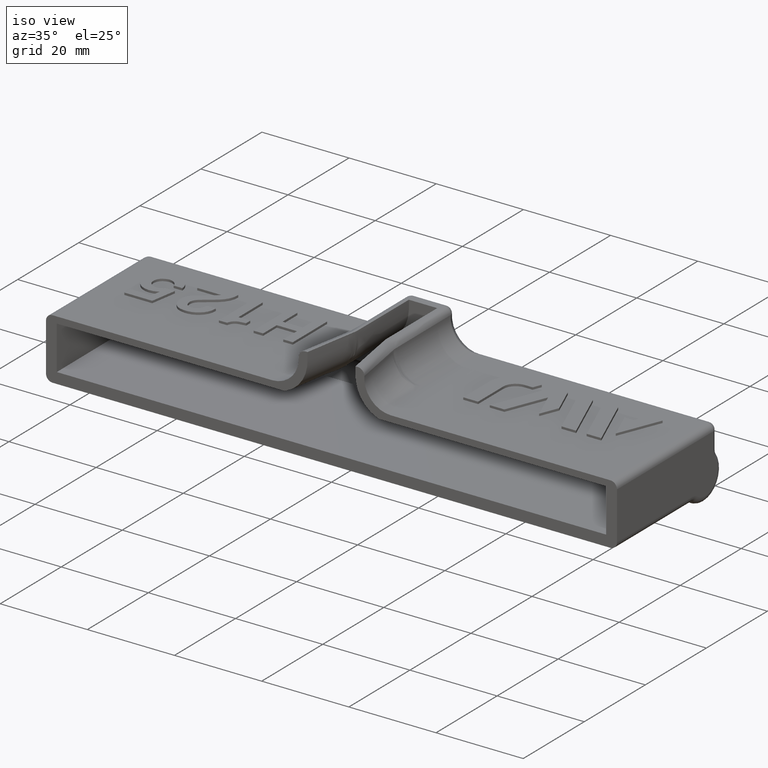
[diagram: clean part render]
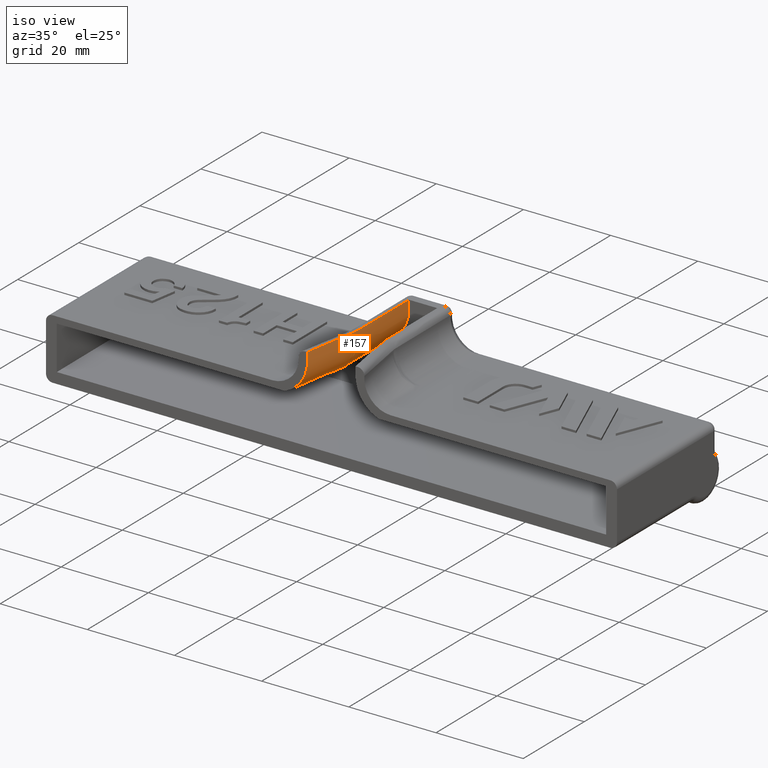
[diagram: same view with one face highlighted and labeled with its STEP entity id]
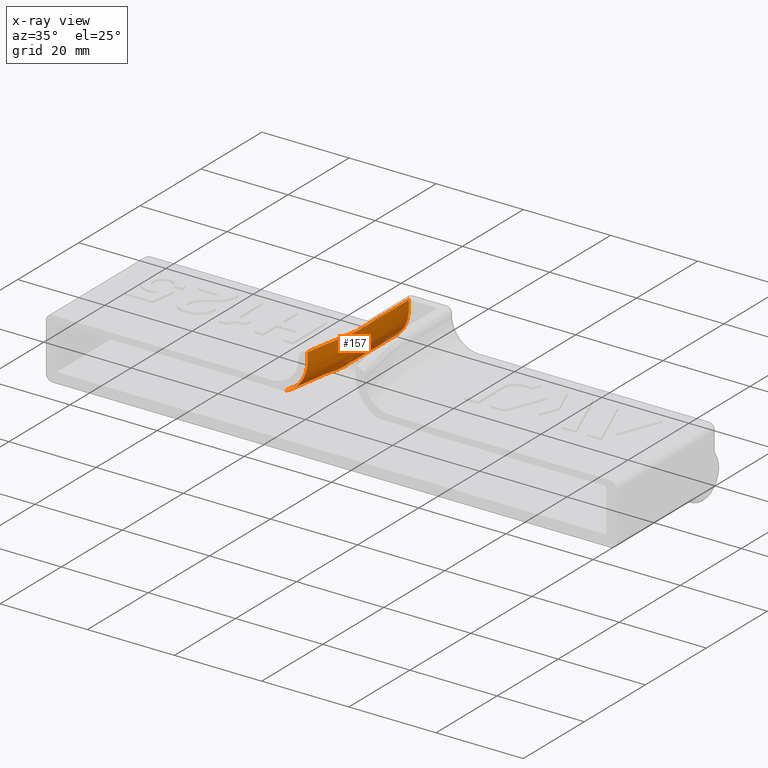
[diagram: x-ray of the same camera — body ghosted, the highlighted face saturated]
A machine part, iso view. The second image highlights one B-rep face of the part: STEP entity #157.
The next image is the same camera in x-ray: the body ghosted, the highlighted face saturated — about 2% of this face is hidden behind the body in this view.
In plain terms, the highlighted face is a OffsetSurface surface.
Its self-contained STEP definition (entity closure, byte-faithful):
#157=ADVANCED_FACE('',(#339),#340,.F.);
#339=FACE_OUTER_BOUND('',#1029,.T.);
#340=OFFSET_SURFACE('',#1030,-2.0,.F.);
#1029=EDGE_LOOP('',(#2074,#2075,#2076,#2077));
#1030=B_SPLINE_SURFACE_WITH_KNOTS('',3,3,((#2078,#2079,#2080,#2081,#2082,#2083,#2084,#2085,#2086,#2087,#2088),(#2089,#2090,#2091,#2092,#2093,#2094,#2095,#2096,#2097,#2098,#2099),(#2100,#2101,#2102,#2103,#2104,#2105,#2106,#2107,#2108,#2109,#2110),(#2111,#2112,#2113,#2114,#2115,#2116,#2117,#2118,#2119,#2120,#2121),(#2122,#2123,#2124,#2125,#2126,#2127,#2128,#2129,#2130,#2131,#2132),(#2133,#2134,#2135,#2136,#2137,#2138,#2139,#2140,#2141,#2142,#2143),(#2144,#2145,#2146,#2147,#2148,#2149,#2150,#2151,#2152,#2153,#2154),(#2155,#2156,#2157,#2158,#2159,#2160,#2161,#2162,#2163,#2164,#2165),(#2166,#2167,#2168,#2169,#2170,#2171,#2172,#2173,#2174,#2175,#2176)),.UNSPECIFIED.,.F.,.F.,.F.,(4,2,1,1,1,4),(4,2,1,1,1,2,4),(0.0,0.2,0.4,0.6,0.8,1.0),(0.156861815288921,1.0,2.0,3.0,4.0,5.0,5.77702223691957),.UNSPECIFIED.);
#2074=ORIENTED_EDGE('',*,*,#3035,.F.);
#2075=ORIENTED_EDGE('',*,*,#3036,.T.);
#2076=ORIENTED_EDGE('',*,*,#3037,.T.);
#2077=ORIENTED_EDGE('',*,*,#3038,.F.);
#2078=CARTESIAN_POINT('',(-5.25,30.0000000000004,14.5));
#2079=CARTESIAN_POINT('',(-5.25,24.6249622117534,14.5));
#2080=CARTESIAN_POINT('',(-5.25,19.2499244235064,14.5));
#2081=CARTESIAN_POINT('',(-5.25,13.729442533856,14.5));
#2082=CARTESIAN_POINT('',(-5.25634720316461,13.4385543310493,14.5));
#2083=CARTESIAN_POINT('',(-5.2848914940124,13.0030526101797,14.5));
#2084=CARTESIAN_POINT('',(-5.33240493528107,12.5692104749287,14.5));
#2085=CARTESIAN_POINT('',(-5.37666636671683,12.281639337282,14.5));
#2086=CARTESIAN_POINT('',(-6.18116418474049,7.71910548800226,14.5));
#2087=CARTESIAN_POINT('',(-6.96040589960307,3.29980611741442,14.5));
#2088=CARTESIAN_POINT('',(-7.73964761446565,-1.11949325317344,14.5));
#2089=CARTESIAN_POINT('',(-5.25,30.0000000000004,13.8333333333333));
#2090=CARTESIAN_POINT('',(-5.25,24.6249622117534,13.8333333333333));
#2091=CARTESIAN_POINT('',(-5.25,19.2499244235064,13.8333333333333));
#2092=CARTESIAN_POINT('',(-5.25,13.729442533856,13.8333333333333));
#2093=CARTESIAN_POINT('',(-5.25634720316463,13.4385543310493,13.8333333333333));
#2094=CARTESIAN_POINT('',(-5.28489149401241,13.0030526101797,13.8333333333333));
#2095=CARTESIAN_POINT('',(-5.33240493528109,12.5692104749287,13.8333333333333));
#2096=CARTESIAN_POINT('',(-5.37666636671684,12.281639337282,13.8333333333333));
#2097=CARTESIAN_POINT('',(-6.18116418474051,7.71910548800227,13.8333333333333));
#2098=CARTESIAN_POINT('',(-6.96040589960308,3.29980611741442,13.8333333333333));
#2099=CARTESIAN_POINT('',(-7.73964761446566,-1.11949325317344,13.8333333333333));
#2100=CARTESIAN_POINT('',(-5.25,30.0000000000004,13.1666666666666));
#2101=CARTESIAN_POINT('',(-5.25,24.6249622117534,13.1666666666666));
#2102=CARTESIAN_POINT('',(-5.25,19.2499244235064,13.1666666666666));
#2103=CARTESIAN_POINT('',(-5.25,13.729442533856,13.1666666666666));
#2104=CARTESIAN_POINT('',(-5.25634720316463,13.4385543310493,13.1666666666666));
#2105=CARTESIAN_POINT('',(-5.28489149401242,13.0030526101797,13.1666666666666));
#2106=CARTESIAN_POINT('',(-5.3324049352811,12.5692104749287,13.1666666666666));
#2107=CARTESIAN_POINT('',(-5.37666636671685,12.281639337282,13.1666666666666));
#2108=CARTESIAN_POINT('',(-6.18116418474052,7.71910548800227,13.1666666666666));
#2109=CARTESIAN_POINT('',(-6.96040589960309,3.29980611741442,13.1666666666666));
#2110=CARTESIAN_POINT('',(-7.73964761446567,-1.11949325317344,13.1666666666666));
#2111=CARTESIAN_POINT('',(-5.25,30.0000000000004,11.7147075251699));
#2112=CARTESIAN_POINT('',(-5.25,24.6249622117534,11.7147075251699));
#2113=CARTESIAN_POINT('',(-5.25,19.2499244235064,11.7147075251699));
#2114=CARTESIAN_POINT('',(-5.25,13.729442533856,11.7147075251699));
#2115=CARTESIAN_POINT('',(-5.25634720316466,13.4385543310493,11.7147075251699));
#2116=CARTESIAN_POINT('',(-5.28489149401245,13.0030526101797,11.7147075251699));
#2117=CARTESIAN_POINT('',(-5.33240493528113,12.5692104749287,11.7147075251699));
#2118=CARTESIAN_POINT('',(-5.37666636671688,12.2816393372821,11.7147075251699));
#2119=CARTESIAN_POINT('',(-6.18116418474055,7.71910548800228,11.7147075251699));
#2120=CARTESIAN_POINT('',(-6.96040589960312,3.29980611741443,11.7147075251699));
#2121=CARTESIAN_POINT('',(-7.7396476144657,-1.11949325317343,11.7147075251699));
#2122=CARTESIAN_POINT('',(-5.5624087705078,30.0000000000004,10.14412257551));
#2123=CARTESIAN_POINT('',(-5.5624087705078,24.6249622117534,10.14412257551));
#2124=CARTESIAN_POINT('',(-5.5624087705078,19.2499244235064,10.14412257551));
#2125=CARTESIAN_POINT('',(-5.5624087705078,13.7339870562709,10.14412257551));
#2126=CARTESIAN_POINT('',(-5.56855767700651,13.4521854254735,10.14412257551));
#2127=CARTESIAN_POINT('',(-5.5962102392984,13.0302894711354,10.1441225755099));
#2128=CARTESIAN_POINT('',(-5.64223924519856,12.6100012472889,10.14412257551));
#2129=CARTESIAN_POINT('',(-5.68511809405763,12.33141307006,10.14412257551));
#2130=CARTESIAN_POINT('',(-6.48882676404559,7.77335470168811,10.14412257551));
#2131=CARTESIAN_POINT('',(-7.26806847890816,3.35405533110026,10.14412257551));
#2132=CARTESIAN_POINT('',(-8.04731019377074,-1.0652440394876,10.14412257551));
#2133=CARTESIAN_POINT('',(-6.8969061328167,30.0000000000004,8.14690613281661));
#2134=CARTESIAN_POINT('',(-6.8969061328167,24.6249622117534,8.14690613281661));
#2135=CARTESIAN_POINT('',(-6.8969061328167,19.2499244235064,8.14690613281661));
#2136=CARTESIAN_POINT('',(-6.89690613281671,13.7533996136257,8.14690613281661));
#2137=CARTESIAN_POINT('',(-6.9022079876236,13.5104125345426,8.14690613281661));
#2138=CARTESIAN_POINT('',(-6.92605140779758,13.1466354976691,8.1469061328166));
#2139=CARTESIAN_POINT('',(-6.96573944228206,12.7842446849259,8.1469061328166));
#2140=CARTESIAN_POINT('',(-7.00271239804229,12.5440284681375,8.1469061328166));
#2141=CARTESIAN_POINT('',(-7.80305011282174,8.00508773675437,8.1469061328166));
#2142=CARTESIAN_POINT('',(-8.58229182768431,3.58578836616652,8.1469061328166));
#2143=CARTESIAN_POINT('',(-9.36153354254689,-0.83351100442133,8.1469061328166));
#2144=CARTESIAN_POINT('',(-8.8941225755101,30.0000000000004,6.81240877050773));
#2145=CARTESIAN_POINT('',(-8.8941225755101,24.6249622117534,6.81240877050773));
#2146=CARTESIAN_POINT('',(-8.8941225755101,19.2499244235064,6.81240877050773));
#2147=CARTESIAN_POINT('',(-8.8941225755101,13.7824525588309,6.81240877050773));
#2148=CARTESIAN_POINT('',(-8.89815672787375,13.5975555615186,6.81240877050773));
#2149=CARTESIAN_POINT('',(-8.91629936400325,13.3207596314427,6.81240877050771));
#2150=CARTESIAN_POINT('',(-8.94649746412612,13.0450184178,6.81240877050771));
#2151=CARTESIAN_POINT('',(-8.97463162624095,12.8622298981317,6.81240877050772));
#2152=CARTESIAN_POINT('',(-9.76992435002966,8.35190073243451,6.81240877050771));
#2153=CARTESIAN_POINT('',(-10.5491660648922,3.93260136184666,6.81240877050772));
#2154=CARTESIAN_POINT('',(-11.3284077797548,-0.48669800874119,6.81240877050772));
#2155=CARTESIAN_POINT('',(-10.46470752517,30.0000000000004,6.5));
#2156=CARTESIAN_POINT('',(-10.46470752517,24.6249622117534,6.5));
#2157=CARTESIAN_POINT('',(-10.46470752517,19.2499244235064,6.5));
#2158=CARTESIAN_POINT('',(-10.46470752517,13.8052994158401,6.5));
#2159=CARTESIAN_POINT('',(-10.4677447728741,13.6660837008383,6.5));
#2160=CARTESIAN_POINT('',(-10.4814043868182,13.4576885781665,6.5));
#2161=CARTESIAN_POINT('',(-10.5041397263895,13.2500874786006,6.5));
#2162=CARTESIAN_POINT('',(-10.5253231765154,13.1124593505967,6.5));
#2163=CARTESIAN_POINT('',(-11.3166485852191,8.62462994681407,6.5));
#2164=CARTESIAN_POINT('',(-12.0958903000816,4.20533057622622,6.5));
#2165=CARTESIAN_POINT('',(-12.8751320149442,-0.213968794361634,6.5));
#2166=CARTESIAN_POINT('',(-11.25,30.0000000000004,6.5));
#2167=CARTESIAN_POINT('',(-11.25,24.6249622117534,6.5));
#2168=CARTESIAN_POINT('',(-11.25,19.2499244235064,6.5));
#2169=CARTESIAN_POINT('',(-11.25,13.8167228443446,6.5));
#2170=CARTESIAN_POINT('',(-11.2525387953742,13.7003477704981,6.5));
#2171=CARTESIAN_POINT('',(-11.2639568982257,13.5261530515284,6.5));
#2172=CARTESIAN_POINT('',(-11.2829608575211,13.3526220090009,6.5));
#2173=CARTESIAN_POINT('',(-11.3006689516526,13.2375740768292,6.5));
#2174=CARTESIAN_POINT('',(-12.0900107028138,8.76099455400385,6.5));
#2175=CARTESIAN_POINT('',(-12.8692524176763,4.341695183416,6.5));
#2176=CARTESIAN_POINT('',(-13.6484941325389,-0.0776041871718498,6.5));
#3035=EDGE_CURVE('',#3474,#3475,#3476,.T.);
#3036=EDGE_CURVE('',#3474,#3477,#3478,.T.);
#3037=EDGE_CURVE('',#3477,#3446,#3479,.T.);
#3038=EDGE_CURVE('',#3475,#3446,#3480,.F.);
#3446=VERTEX_POINT('',#4462);
#3474=VERTEX_POINT('',#4559);
#3475=VERTEX_POINT('',#4560);
#3476=B_SPLINE_CURVE_WITH_KNOTS('',3,(#4561,#4562,#4563,#4564,#4565,#4566,#4567,#4568,#4569,#4570,#4571,#4572,#4573,#4574,#4575,#4576,#4577,#4578,#4579),.UNSPECIFIED.,.F.,.F.,(4,2,2,2,2,2,2,2,1,4),(0.00293818128565952,0.0043865750629155,0.00511077195154349,0.00583496884017148,0.00873175639468344,0.0116285439491954,0.0123527408378234,0.0127148392821374,0.0130769377264514,0.0145253315037074),.UNSPECIFIED.);
#3477=VERTEX_POINT('',#4580);
#3478=B_SPLINE_CURVE_WITH_KNOTS('',3,(#4581,#4582,#4583,#4584,#4585,#4586,#4587,#4588,#4589,#4590,#4591,#4592,#4593,#4594,#4595,#4596,#4597,#4598,#4599,#4600,#4601,#4602,#4603,#4604,#4605,#4606,#4607,#4608,#4609,#4610,#4611,#4612,#4613,#4614,#4615),.UNSPECIFIED.,.F.,.F.,(4,2,2,1,2,2,2,2,2,2,2,2,2,2,2,2,2,4),(0.0,0.0076031971731548,0.0114047957597322,0.0123551954063765,0.0128303952296987,0.0133055950530209,0.0137807948763431,0.0142559946996652,0.0152063943463096,0.019007992932887,0.0228095915194644,0.0266111901060418,0.0285119893993305,0.0294623890459748,0.029937588869297,0.0301751887809581,0.0302939887367886,0.0304127886926191),.UNSPECIFIED.);
#3479=B_SPLINE_CURVE_WITH_KNOTS('',3,(#4616,#4617,#4618,#4619,#4620,#4621,#4622,#4623,#4624,#4625,#4626,#4627,#4628,#4629,#4630,#4631,#4632,#4633,#4634,#4635,#4636,#4637,#4638,#4639),.UNSPECIFIED.,.F.,.F.,(4,2,2,2,2,2,2,2,2,2,2,4),(0.0,0.001803772938655,0.00360754587731001,0.00541131881596501,0.00631320528529251,0.00721509175462001,0.00901886469327502,0.01082263763193,0.0117245241012575,0.0121754673359213,0.012626410570585,0.01443018350924),.UNSPECIFIED.);
#3480=B_SPLINE_CURVE_WITH_KNOTS('',3,(#4640,#4641,#4642,#4643,#4644,#4645,#4646,#4647,#4648,#4649,#4650,#4651,#4652,#4653,#4654,#4655,#4656,#4657,#4658,#4659,#4660,#4661,#4662,#4663,#4664,#4665,#4666,#4667,#4668,#4669,#4670,#4671,#4672,#4673,#4674,#4675,#4676,#4677,#4678,#4679,#4680,#4681,#4682,#4683,#4684,#4685),.UNSPECIFIED.,.F.,.F.,(4,2,2,2,2,2,2,2,2,2,2,2,2,2,2,2,2,2,2,2,2,2,4),(0.0261436358814902,0.125,0.15625,0.1640625,0.166015625,0.16650390625,0.1669921875,0.16796875,0.171875,0.1875,0.25,0.5,0.75,0.8125,0.828125,0.83203125,0.8330078125,0.83349609375,0.833984375,0.8359375,0.84375,0.875,0.948509376922931),.UNSPECIFIED.);
#4462=CARTESIAN_POINT('',(-3.25,30.0,14.5));
#4559=CARTESIAN_POINT('',(-10.7441838773948,0.0,5.02365194784654));
#4560=CARTESIAN_POINT('',(-5.51139752543859,-3.46944695195361E-15,14.5));
#4561=CARTESIAN_POINT('',(-10.7441838773949,4.20266462543012E-15,5.02365194784649));
#4562=CARTESIAN_POINT('',(-10.2872656061677,4.12574122198732E-15,5.19486941533414));
#4563=CARTESIAN_POINT('',(-9.85172207004421,3.34723892084368E-14,5.40465509291868));
#4564=CARTESIAN_POINT('',(-9.22921570702365,3.33508114583536E-14,5.77492474106589));
#4565=CARTESIAN_POINT('',(-9.0268817897966,4.80496039905112E-16,5.90767337650549));
#4566=CARTESIAN_POINT('',(-8.63279850495929,3.9738354311245E-16,6.19226922949209));
#4567=CARTESIAN_POINT('',(-8.44042633162357,-1.61073078945618E-15,6.34471886274521));
#4568=CARTESIAN_POINT('',(-7.51895797994425,-1.82169521947846E-15,7.14594550402192));
#4569=CARTESIAN_POINT('',(-6.89949161837047,9.89976860114626E-15,7.92387345254153));
#4570=CARTESIAN_POINT('',(-5.98139635781653,9.57634750964567E-15,9.64679717278474));
#4571=CARTESIAN_POINT('',(-5.68329487437067,7.3299989472721E-15,10.596503610862));
#4572=CARTESIAN_POINT('',(-5.53821550661058,7.16383407991732E-15,11.8083233860806));
#4573=CARTESIAN_POINT('',(-5.52037000452355,7.60110000662213E-15,12.0527723543936));
#4574=CARTESIAN_POINT('',(-5.51085429478133,7.55500435453852E-15,12.4196743843334));
#4575=CARTESIAN_POINT('',(-5.51139752543862,-2.47508968574464E-15,12.5420578764145));
#4576=CARTESIAN_POINT('',(-5.51139752543861,-2.5050605453716E-15,12.7868006418627));
#4577=CARTESIAN_POINT('',(-5.5113975254386,-1.90047123975779E-15,13.3986575554831));
#4578=CARTESIAN_POINT('',(-5.5113975254386,-3.4095052326997E-15,14.0105144691037));
#4579=CARTESIAN_POINT('',(-5.51139752543859,-3.46944695195361E-15,14.5));
#4580=CARTESIAN_POINT('',(-11.25,30.0,4.5));
#4581=CARTESIAN_POINT('',(-10.7441838773948,0.0,5.02365194784652));
#4582=CARTESIAN_POINT('',(-10.4181363320751,2.51297484229254,4.97978780881133));
#4583=CARTESIAN_POINT('',(-10.0999221706268,5.02693510356069,4.93590646922394));
#4584=CARTESIAN_POINT('',(-9.640611067619,8.80014112334189,4.87004491316112));
#4585=CARTESIAN_POINT('',(-9.49054663474756,10.0582434845293,4.84808465476025));
#4586=CARTESIAN_POINT('',(-9.30795222707353,11.6314574751249,4.82062410240843));
#4587=CARTESIAN_POINT('',(-9.25355110767011,12.1034667462975,4.81238514993339));
#4588=CARTESIAN_POINT('',(-9.19976117322815,12.5755453668447,4.80414498696076));
#4589=CARTESIAN_POINT('',(-9.16404264958502,12.8902806970402,4.798651261337));
#4590=CARTESIAN_POINT('',(-9.14911472797623,13.0479730734012,4.79589873066868));
#4591=CARTESIAN_POINT('',(-9.13446980356906,13.3641497936023,4.79037984548878));
#4592=CARTESIAN_POINT('',(-9.13334480417331,13.5226629184067,4.78761298860334));
#4593=CARTESIAN_POINT('',(-9.14345497821382,13.8385537108867,4.78209909431038));
#4594=CARTESIAN_POINT('',(-9.1555060579212,13.9961093361484,4.77934895064163));
#4595=CARTESIAN_POINT('',(-9.18613465099928,14.4690840090952,4.77109314701594));
#4596=CARTESIAN_POINT('',(-9.20687335583095,14.7843826493203,4.76558958877903));
#4597=CARTESIAN_POINT('',(-9.31231566935497,16.3607784193347,4.73807349826086));
#4598=CARTESIAN_POINT('',(-9.40210350918321,17.6214943661973,4.71606761955233));
#4599=CARTESIAN_POINT('',(-9.59845210630882,20.1415301313111,4.67208023165084));
#4600=CARTESIAN_POINT('',(-9.70468711688805,21.4008949744153,4.65009793654617));
#4601=CARTESIAN_POINT('',(-9.94737125982916,23.9171768602917,4.6061760728505));
#4602=CARTESIAN_POINT('',(-10.0813263585938,25.1745146889683,4.58422915941422));
#4603=CARTESIAN_POINT('',(-10.3422407632009,27.0524922403518,4.55144893932109));
#4604=CARTESIAN_POINT('',(-10.438185774311,27.67762436764,4.54053721745078));
#4605=CARTESIAN_POINT('',(-10.6255819140489,28.6069431100845,4.5243158984624));
#4606=CARTESIAN_POINT('',(-10.6945228540327,28.9157511395035,4.51892563425831));
#4607=CARTESIAN_POINT('',(-10.829862077227,29.3701484779995,4.51099409921166));
#4608=CARTESIAN_POINT('',(-10.8797397315756,29.5204883118392,4.50836990765068));
#4609=CARTESIAN_POINT('',(-10.9778513132185,29.7363870165212,4.50460138174254));
#4610=CARTESIAN_POINT('',(-11.0141509926037,29.8069684934275,4.50336937748042));
#4611=CARTESIAN_POINT('',(-11.0842240246517,29.9026825978816,4.50169868157262));
#4612=CARTESIAN_POINT('',(-11.1103132649643,29.9329797456417,4.50116984289144));
#4613=CARTESIAN_POINT('',(-11.1724335154568,29.9817372861122,4.50031877685679));
#4614=CARTESIAN_POINT('',(-11.2099807666153,30.0000000000004,4.5));
#4615=CARTESIAN_POINT('',(-11.25,30.0000000000004,4.5));
#4616=CARTESIAN_POINT('',(-11.25,30.0,4.5));
#4617=CARTESIAN_POINT('',(-10.6400924485574,30.0,4.5));
#4618=CARTESIAN_POINT('',(-10.0419812087457,30.0,4.56929461455834));
#4619=CARTESIAN_POINT('',(-8.86814488565618,30.0,4.83938597222035));
#4620=CARTESIAN_POINT('',(-8.28767402975925,30.0,5.04421302021941));
#4621=CARTESIAN_POINT('',(-7.20546339892574,30.0,5.57186563311459));
#4622=CARTESIAN_POINT('',(-6.69625646674248,30.0,5.89487850939965));
#4623=CARTESIAN_POINT('',(-5.98492366428187,30.0,6.46926358858236));
#4624=CARTESIAN_POINT('',(-5.75974636553154,30.0,6.67334723972602));
#4625=CARTESIAN_POINT('',(-5.33338191162293,30.0,7.10688841816991));
#4626=CARTESIAN_POINT('',(-5.13200697952973,30.0,7.33671416185127));
#4627=CARTESIAN_POINT('',(-4.57112416440406,30.0,8.05541231374864));
#4628=CARTESIAN_POINT('',(-4.25123333166779,30.0,8.57781147336097));
#4629=CARTESIAN_POINT('',(-3.73830337258212,30.0,9.68105717727961));
#4630=CARTESIAN_POINT('',(-3.54516643243578,30.0,10.264057508612));
#4631=CARTESIAN_POINT('',(-3.35816464306581,30.0,11.1565247765988));
#4632=CARTESIAN_POINT('',(-3.31255099570811,30.0,11.4587081122182));
#4633=CARTESIAN_POINT('',(-3.27028176183834,30.0,11.9127015684134));
#4634=CARTESIAN_POINT('',(-3.2605074695118,30.0,12.0643214523801));
#4635=CARTESIAN_POINT('',(-3.24964387152911,30.0,12.3681423025605));
#4636=CARTESIAN_POINT('',(-3.25,30.0,12.5204399777436));
#4637=CARTESIAN_POINT('',(-3.25,30.0,13.281809217073));
#4638=CARTESIAN_POINT('',(-3.25,30.0,13.8909046085364));
#4639=CARTESIAN_POINT('',(-3.25,30.0,14.5));
#4640=CARTESIAN_POINT('',(-3.25,30.0,14.5));
#4641=CARTESIAN_POINT('',(-3.25,26.2187216588149,14.5));
#4642=CARTESIAN_POINT('',(-3.25,22.4374433176297,14.5));
#4643=CARTESIAN_POINT('',(-3.25,17.4608453911483,14.5));
#4644=CARTESIAN_POINT('',(-3.25,16.265525805852,14.5));
#4645=CARTESIAN_POINT('',(-3.25,14.7713763242316,14.5));
#4646=CARTESIAN_POINT('',(-3.25,14.4725464279076,14.5));
#4647=CARTESIAN_POINT('',(-3.25,14.0990090575025,14.5));
#4648=CARTESIAN_POINT('',(-3.25,14.0243015834214,14.5));
#4649=CARTESIAN_POINT('',(-3.25,13.9309172408202,14.5));
#4650=CARTESIAN_POINT('',(-3.25,13.9122403722999,14.5));
#4651=CARTESIAN_POINT('',(-3.25,13.8748866352594,14.5));
#4652=CARTESIAN_POINT('',(-3.25,13.8743752948148,14.5));
#4653=CARTESIAN_POINT('',(-3.25000013075167,13.8728412739626,14.5));
#4654=CARTESIAN_POINT('',(-3.25000034867093,13.8718185938792,14.5));
#4655=CARTESIAN_POINT('',(-3.25000209201984,13.8667051960242,14.5));
#4656=CARTESIAN_POINT('',(-3.25000557870722,13.8626144859399,14.5));
#4657=CARTESIAN_POINT('',(-3.25003347187887,13.8421609854302,14.5));
#4658=CARTESIAN_POINT('',(-3.25008925754548,13.8257983447415,14.5));
#4659=CARTESIAN_POINT('',(-3.25053552277892,13.7439865102818,14.5));
#4660=CARTESIAN_POINT('',(-3.25142800744308,13.6785414235989,14.5));
#4661=CARTESIAN_POINT('',(-3.25856681750881,13.3513743901286,14.5));
#4662=CARTESIAN_POINT('',(-3.27284569972601,13.0898277775959,14.5));
#4663=CARTESIAN_POINT('',(-3.31848154607211,12.5682076669791,14.5));
#4664=CARTESIAN_POINT('',(-3.34983668480154,12.3081550333067,14.5));
#4665=CARTESIAN_POINT('',(-3.39961828845634,11.9847187608565,14.5));
#4666=CARTESIAN_POINT('',(-3.41010378267937,11.9201129537591,14.5));
#4667=CARTESIAN_POINT('',(-3.4238707731831,11.8394665317504,14.5));
#4668=CARTESIAN_POINT('',(-3.42665717776353,11.8233427892611,14.5));
#4669=CARTESIAN_POINT('',(-3.43018142144226,11.8031951797845,14.5));
#4670=CARTESIAN_POINT('',(-3.43088833207699,11.7991660113212,14.5));
#4671=CARTESIAN_POINT('',(-3.43177454743268,11.7941299947401,14.5));
#4672=CARTESIAN_POINT('',(-3.43195191935693,11.7931228136237,14.5));
#4673=CARTESIAN_POINT('',(-3.43221817051717,11.7916120752905,14.5));
#4674=CARTESIAN_POINT('',(-3.43230696385351,11.7911085032563,14.5));
#4675=CARTESIAN_POINT('',(-3.43818307550911,11.7577834180538,14.5));
#4676=CARTESIAN_POINT('',(-3.4411211313369,11.7411208754526,14.5));
#4677=CARTESIAN_POINT('',(-3.45581141047591,11.6578081624465,14.5));
#4678=CARTESIAN_POINT('',(-3.46756363378711,11.5911579920416,14.5));
#4679=CARTESIAN_POINT('',(-3.5263247503431,11.2579071400171,14.5));
#4680=CARTESIAN_POINT('',(-3.57333364358789,10.9913064583976,14.5));
#4681=CARTESIAN_POINT('',(-3.80837810981186,9.65830305029984,14.5));
#4682=CARTESIAN_POINT('',(-3.99641368279103,8.59190032382165,14.5));
#4683=CARTESIAN_POINT('',(-4.62676534565967,5.01699839822896,14.5));
#4684=CARTESIAN_POINT('',(-5.06908143554913,2.50849919911448,14.5));
#4685=CARTESIAN_POINT('',(-5.51139752543859,1.0842021724855E-15,14.5));